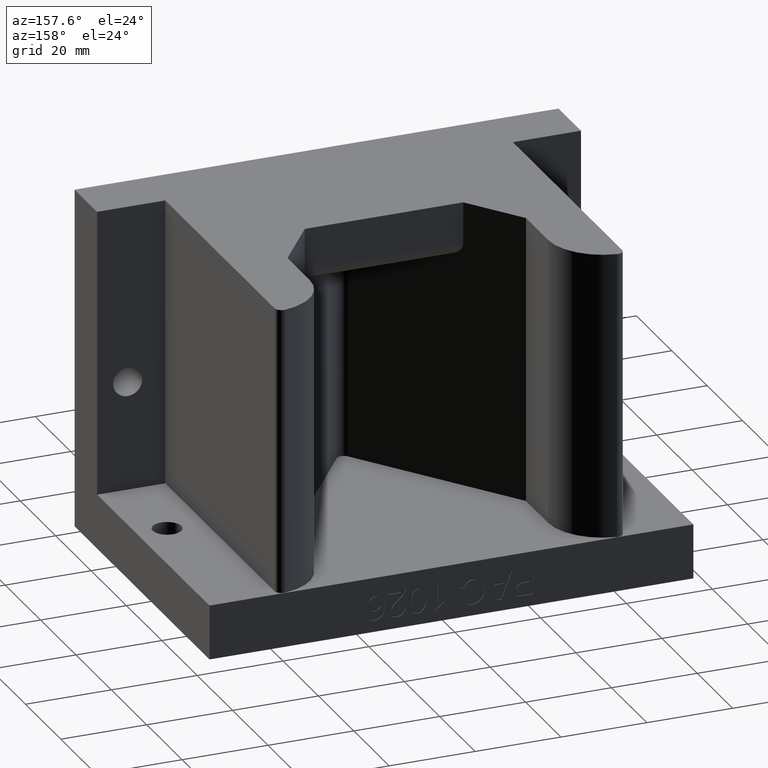
[diagram: clean part render]
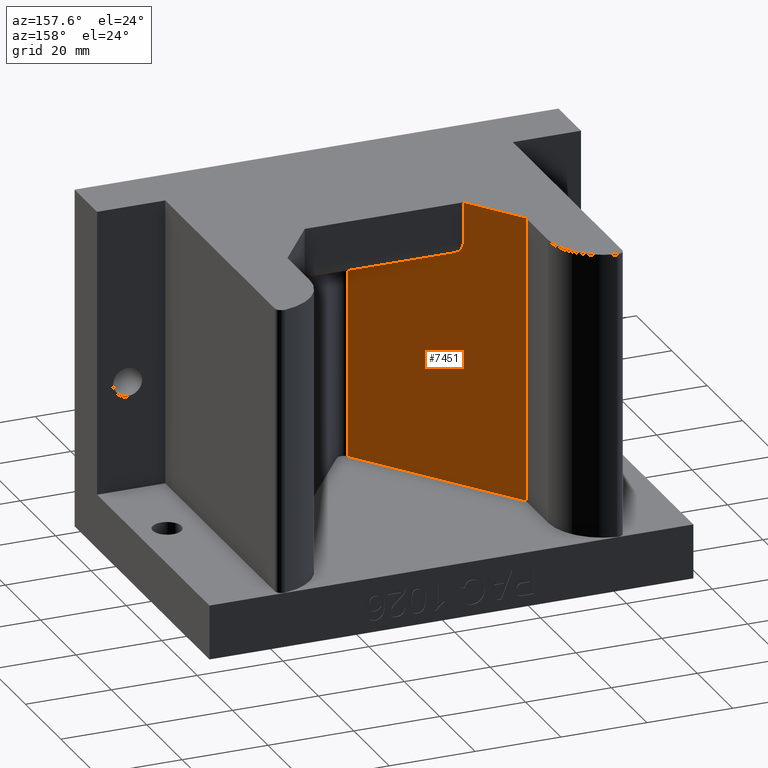
[diagram: same view with one face highlighted and labeled with its STEP entity id]
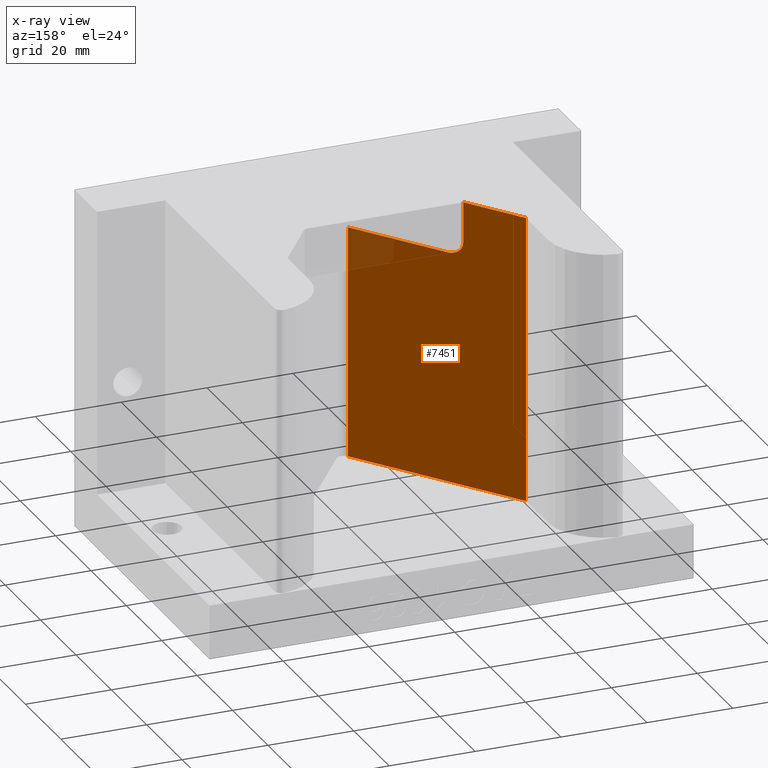
[diagram: x-ray of the same camera — body ghosted, the highlighted face saturated]
A machine part, auxiliary view. The second image highlights one B-rep face of the part: STEP entity #7451.
The next image is the same camera in x-ray: the body ghosted, the highlighted face saturated — about 3% of this face is hidden behind the body in this view.
In plain terms, the highlighted planar face has unit normal (-0.809, -0.5878, 0).
Its self-contained STEP definition (entity closure, byte-faithful):
#221 = LINE ( 'NONE', #7052, #222 ) ;
#222 = VECTOR ( 'NONE', #7051, 39.37007874015748900 ) ;
#407 = DIRECTION ( 'NONE',  ( -0.0000000000000000000, -0.0000000000000000000, 1.000000000000000000 ) ) ;
#420 = CARTESIAN_POINT ( 'NONE',  ( -0.7265425280053518000, -1.554635595738830900E-016, -3.937007874019685500E-005 ) ) ;
#459 = DIRECTION ( 'NONE',  ( -0.0000000000000000000, -0.0000000000000000000, 1.000000000000000000 ) ) ;
#464 = CARTESIAN_POINT ( 'NONE',  ( -1.093749999999991600, 0.5054177255153523600, 0.5000000000000001100 ) ) ;
#525 = EDGE_LOOP ( 'NONE', ( #1392, #1396, #1388, #1387, #1386, #1391, #1401 ) ) ;
#527 = EDGE_CURVE ( 'NONE', #8565, #8544, #7413, .T. ) ;
#1386 = ORIENTED_EDGE ( 'NONE', *, *, #3193, .T. ) ;
#1387 = ORIENTED_EDGE ( 'NONE', *, *, #3108, .T. ) ;
#1388 = ORIENTED_EDGE ( 'NONE', *, *, #6970, .F. ) ;
#1391 = ORIENTED_EDGE ( 'NONE', *, *, #3126, .F. ) ;
#1392 = ORIENTED_EDGE ( 'NONE', *, *, #5826, .T. ) ;
#1396 = ORIENTED_EDGE ( 'NONE', *, *, #7544, .T. ) ;
#1401 = ORIENTED_EDGE ( 'NONE', *, *, #527, .T. ) ;
#1426 = LINE ( 'NONE', #464, #1435 ) ;
#1435 = VECTOR ( 'NONE', #459, 39.37007874015748100 ) ;
#1460 = VECTOR ( 'NONE', #407, 39.37007874015748100 ) ;
#1463 = LINE ( 'NONE', #420, #1460 ) ;
#1928 = DIRECTION ( 'NONE',  ( 0.5877852522924684700, -0.8090169943749507800, -0.0000000000000000000 ) ) ;
#2018 = CARTESIAN_POINT ( 'NONE',  ( 1.239269950325174900E-016, -1.000000000000000200, 2.625000000000000000 ) ) ;
#3108 = EDGE_CURVE ( 'NONE', #8557, #8579, #1426, .T. ) ;
#3126 = EDGE_CURVE ( 'NONE', #8565, #8532, #1463, .T. ) ;
#3193 = EDGE_CURVE ( 'NONE', #8579, #8532, #6015, .T. ) ;
#3896 = CARTESIAN_POINT ( 'NONE',  ( -0.05056356214843377900, -0.9304052272242743200, 0.5000000000000001100 ) ) ;
#3897 = CARTESIAN_POINT ( 'NONE',  ( -0.05056356214843375800, -0.9304052272242743200, 0.5000000000000001100 ) ) ;
#3898 = DIRECTION ( 'NONE',  ( -0.0000000000000000000, -0.0000000000000000000, -1.000000000000000000 ) ) ;
#3920 = CARTESIAN_POINT ( 'NONE',  ( -0.7265425280053518000, -1.554635595738830900E-016, 3.125000000000000000 ) ) ;
#3932 = CARTESIAN_POINT ( 'NONE',  ( -0.6357247120046830600, -0.1249999999999999000, 2.625000000000000000 ) ) ;
#3933 = CARTESIAN_POINT ( 'NONE',  ( -0.05056356214843377900, -0.9304052272242743200, 2.625000000000000000 ) ) ;
#3945 = CARTESIAN_POINT ( 'NONE',  ( -1.093749999999991600, 0.5054177255153523600, 0.5000000000000001100 ) ) ;
#3953 = CARTESIAN_POINT ( 'NONE',  ( -0.7265425280053518000, -1.554635595738830900E-016, 2.749999999999998700 ) ) ;
#3967 = CARTESIAN_POINT ( 'NONE',  ( -1.093749999999991600, 0.5054177255153523600, 3.125000000000000000 ) ) ;
#4063 = AXIS2_PLACEMENT_3D ( 'NONE', #6412, #6405, #6404 ) ;
#4328 = DIRECTION ( 'NONE',  ( 0.5877852522924688100, -0.8090169943749504500, 0.0000000000000000000 ) ) ;
#4329 = CARTESIAN_POINT ( 'NONE',  ( -1.093749999999991600, 0.5054177255153523600, 3.125000000000000000 ) ) ;
#5826 = EDGE_CURVE ( 'NONE', #8544, #8545, #6098, .T. ) ;
#6015 = LINE ( 'NONE', #4329, #6016 ) ;
#6016 = VECTOR ( 'NONE', #4328, 39.37007874015748900 ) ;
#6098 = LINE ( 'NONE', #2018, #6099 ) ;
#6099 = VECTOR ( 'NONE', #1928, 39.37007874015748900 ) ;
#6404 = DIRECTION ( 'NONE',  ( 0.5877852522924684700, -0.8090169943749507800, 0.0000000000000000000 ) ) ;
#6405 = DIRECTION ( 'NONE',  ( -0.8090169943749507800, -0.5877852522924684700, 0.0000000000000000000 ) ) ;
#6408 = PLANE ( 'NONE',  #4063 ) ;
#6412 = CARTESIAN_POINT ( 'NONE',  ( 1.239269950325174900E-016, -1.000000000000000200, 0.5000000000000001100 ) ) ;
#6970 = EDGE_CURVE ( 'NONE', #8557, #8528, #221, .T. ) ;
#7051 = DIRECTION ( 'NONE',  ( 0.5877852522924684700, -0.8090169943749507800, -0.0000000000000000000 ) ) ;
#7052 = CARTESIAN_POINT ( 'NONE',  ( 1.239269950325174900E-016, -1.000000000000000200, 0.5000000000000001100 ) ) ;
#7413 =( BOUNDED_CURVE ( )  B_SPLINE_CURVE ( 3, ( #8428, #8414, #8413, #8412 ),
 .UNSPECIFIED., .F., .F. ) 
 B_SPLINE_CURVE_WITH_KNOTS ( ( 4, 4 ),
 ( 8.741913579725642300E-015, 1.570796326794894300 ),
 .UNSPECIFIED. ) 
 CURVE ( )  GEOMETRIC_REPRESENTATION_ITEM ( )  RATIONAL_B_SPLINE_CURVE ( ( 1.000000000000000000, 0.8047378541243676000, 0.8047378541243676000, 1.000000000000000000 ) ) 
 REPRESENTATION_ITEM ( '' )  );
#7451 = ADVANCED_FACE ( 'NONE', ( #7571 ), #6408, .F. ) ;
#7544 = EDGE_CURVE ( 'NONE', #8545, #8528, #7677, .T. ) ;
#7571 = FACE_OUTER_BOUND ( 'NONE', #525, .T. ) ;
#7665 = VECTOR ( 'NONE', #3898, 39.37007874015748100 ) ;
#7677 = LINE ( 'NONE', #3897, #7665 ) ;
#8412 = CARTESIAN_POINT ( 'NONE',  ( -0.6357247120046830600, -0.1249999999999999000, 2.625000000000000000 ) ) ;
#8413 = CARTESIAN_POINT ( 'NONE',  ( -0.6889245569127703300, -0.05177669529663735800, 2.625000000000000000 ) ) ;
#8414 = CARTESIAN_POINT ( 'NONE',  ( -0.7265425280053516800, -7.767042014219261300E-016, 2.676776695296636500 ) ) ;
#8428 = CARTESIAN_POINT ( 'NONE',  ( -0.7265425280053518000, -1.554635595738830900E-016, 2.749999999999998700 ) ) ;
#8528 = VERTEX_POINT ( 'NONE', #3896 ) ;
#8532 = VERTEX_POINT ( 'NONE', #3920 ) ;
#8544 = VERTEX_POINT ( 'NONE', #3932 ) ;
#8545 = VERTEX_POINT ( 'NONE', #3933 ) ;
#8557 = VERTEX_POINT ( 'NONE', #3945 ) ;
#8565 = VERTEX_POINT ( 'NONE', #3953 ) ;
#8579 = VERTEX_POINT ( 'NONE', #3967 ) ;